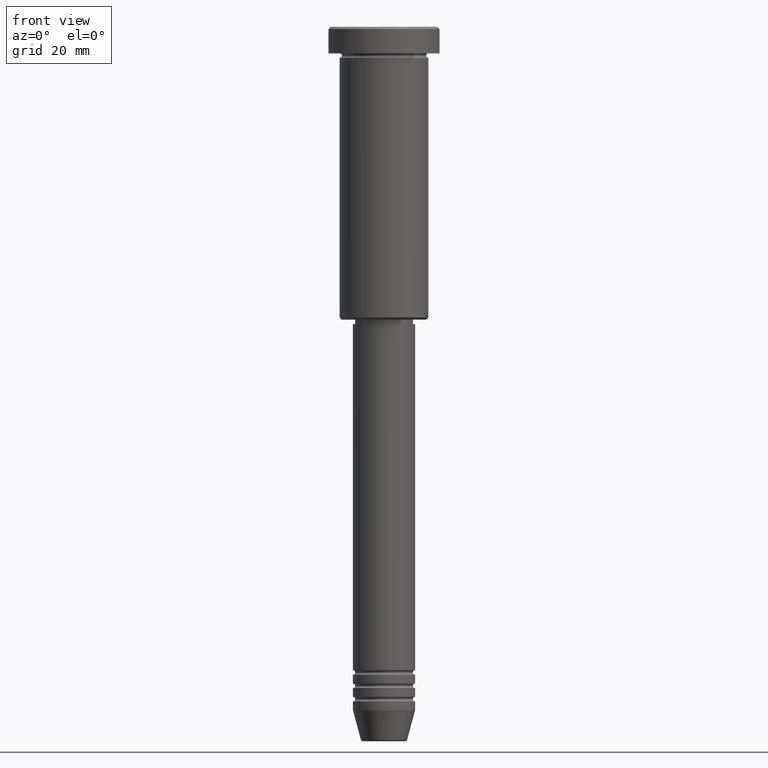
[diagram: clean part render]
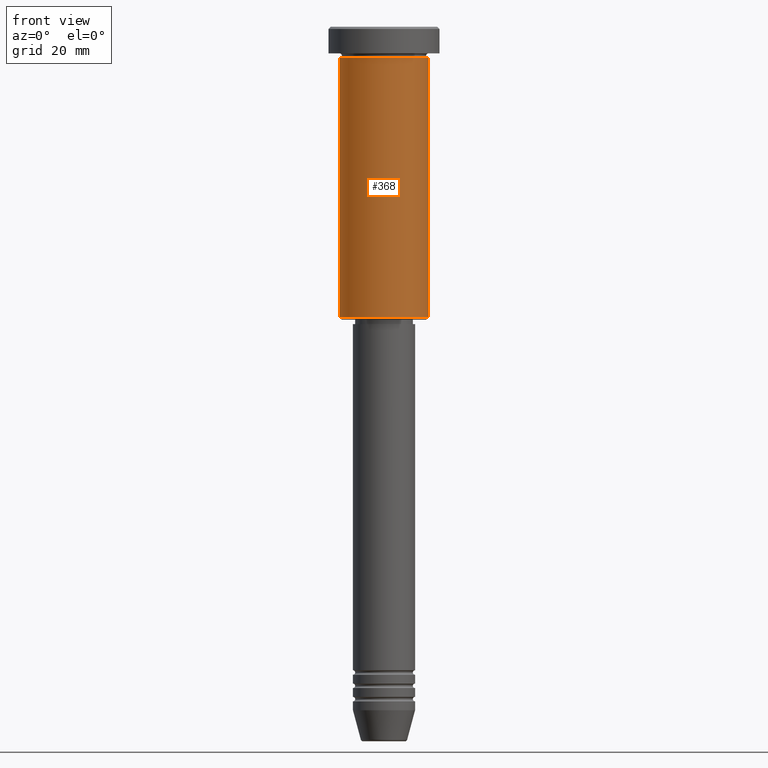
[diagram: same view with one face highlighted and labeled with its STEP entity id]
A machine part, front view. The second image highlights one B-rep face of the part: STEP entity #368.
In plain terms, the highlighted cylindrical surface (partial cylindrical patch) has radius 10 mm, axis along (-0, -0, 1).
Its self-contained STEP definition (entity closure, byte-faithful):
#41 = CARTESIAN_POINT ( 'NONE',  ( 0.000000000000000000, 0.000000000000000000, -6.999999999999996447 ) ) ;
#171 = VECTOR ( 'NONE', #1084, 1000.000000000000000 ) ;
#175 = ORIENTED_EDGE ( 'NONE', *, *, #897, .T. ) ;
#176 = DIRECTION ( 'NONE',  ( 1.000000000000000000, 0.000000000000000000, 0.000000000000000000 ) ) ;
#177 = CARTESIAN_POINT ( 'NONE',  ( -10.00000000000000000, 1.224646799147353256E-15, -6.999999999999996447 ) ) ;
#190 = AXIS2_PLACEMENT_3D ( 'NONE', #566, #288, #1013 ) ;
#238 = EDGE_LOOP ( 'NONE', ( #1039, #673, #175, #459 ) ) ;
#250 = VERTEX_POINT ( 'NONE', #394 ) ;
#288 = DIRECTION ( 'NONE',  ( -0.000000000000000000, -0.000000000000000000, 1.000000000000000000 ) ) ;
#291 = EDGE_CURVE ( 'NONE', #335, #1080, #596, .T. ) ;
#330 = FACE_OUTER_BOUND ( 'NONE', #238, .T. ) ;
#335 = VERTEX_POINT ( 'NONE', #460 ) ;
#368 = ADVANCED_FACE ( 'NONE', ( #330 ), #987, .T. ) ;
#394 = CARTESIAN_POINT ( 'NONE',  ( 10.00000000000000000, 0.000000000000000000, -6.999999999999996447 ) ) ;
#401 = AXIS2_PLACEMENT_3D ( 'NONE', #41, #1053, #700 ) ;
#459 = ORIENTED_EDGE ( 'NONE', *, *, #1009, .F. ) ;
#460 = CARTESIAN_POINT ( 'NONE',  ( -10.00000000000000000, 1.224646799147353256E-15, -65.50000000000000000 ) ) ;
#509 = EDGE_CURVE ( 'NONE', #335, #1092, #788, .T. ) ;
#515 = LINE ( 'NONE', #1064, #671 ) ;
#542 = CARTESIAN_POINT ( 'NONE',  ( -10.00000000000000000, 1.224646799147353256E-15, 0.000000000000000000 ) ) ;
#566 = CARTESIAN_POINT ( 'NONE',  ( 0.000000000000000000, 0.000000000000000000, -65.50000000000000000 ) ) ;
#596 = CIRCLE ( 'NONE', #190, 10.00000000000000000 ) ;
#625 = DIRECTION ( 'NONE',  ( -0.000000000000000000, -0.000000000000000000, 1.000000000000000000 ) ) ;
#671 = VECTOR ( 'NONE', #1057, 1000.000000000000000 ) ;
#673 = ORIENTED_EDGE ( 'NONE', *, *, #291, .T. ) ;
#700 = DIRECTION ( 'NONE',  ( 1.000000000000000000, 0.000000000000000000, 0.000000000000000000 ) ) ;
#715 = CARTESIAN_POINT ( 'NONE',  ( 0.000000000000000000, 0.000000000000000000, 0.000000000000000000 ) ) ;
#788 = LINE ( 'NONE', #542, #171 ) ;
#844 = CIRCLE ( 'NONE', #401, 10.00000000000000000 ) ;
#897 = EDGE_CURVE ( 'NONE', #1080, #250, #515, .T. ) ;
#975 = AXIS2_PLACEMENT_3D ( 'NONE', #715, #625, #176 ) ;
#987 = CYLINDRICAL_SURFACE ( 'NONE', #975, 10.00000000000000000 ) ;
#1009 = EDGE_CURVE ( 'NONE', #1092, #250, #844, .T. ) ;
#1013 = DIRECTION ( 'NONE',  ( -1.000000000000000000, 0.000000000000000000, 0.000000000000000000 ) ) ;
#1039 = ORIENTED_EDGE ( 'NONE', *, *, #509, .F. ) ;
#1053 = DIRECTION ( 'NONE',  ( -0.000000000000000000, -0.000000000000000000, 1.000000000000000000 ) ) ;
#1057 = DIRECTION ( 'NONE',  ( -0.000000000000000000, -0.000000000000000000, 1.000000000000000000 ) ) ;
#1064 = CARTESIAN_POINT ( 'NONE',  ( 10.00000000000000000, 0.000000000000000000, 0.000000000000000000 ) ) ;
#1080 = VERTEX_POINT ( 'NONE', #1165 ) ;
#1084 = DIRECTION ( 'NONE',  ( -0.000000000000000000, -0.000000000000000000, 1.000000000000000000 ) ) ;
#1092 = VERTEX_POINT ( 'NONE', #177 ) ;
#1165 = CARTESIAN_POINT ( 'NONE',  ( 10.00000000000000000, 0.000000000000000000, -65.50000000000000000 ) ) ;